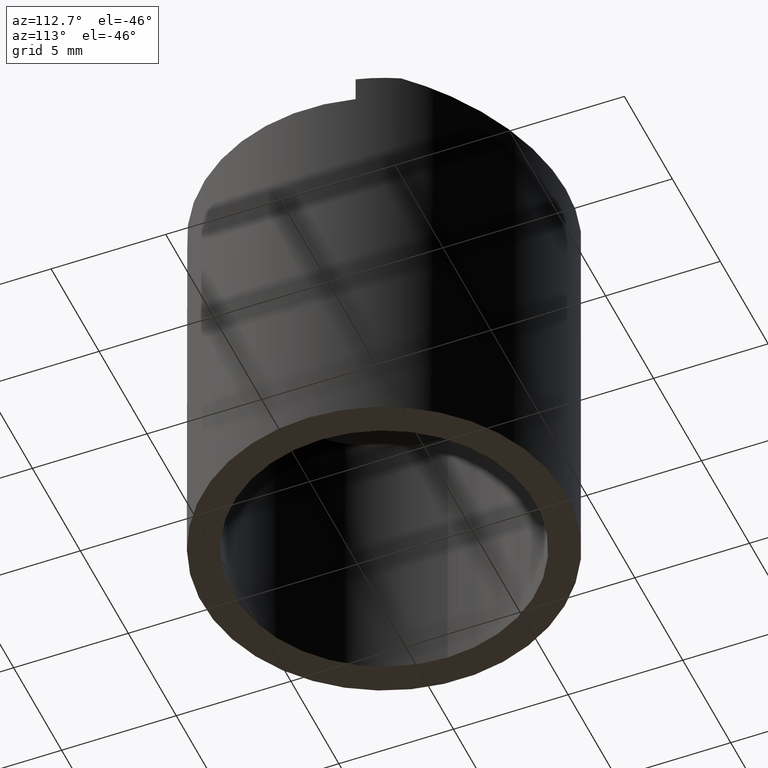
[diagram: clean part render]
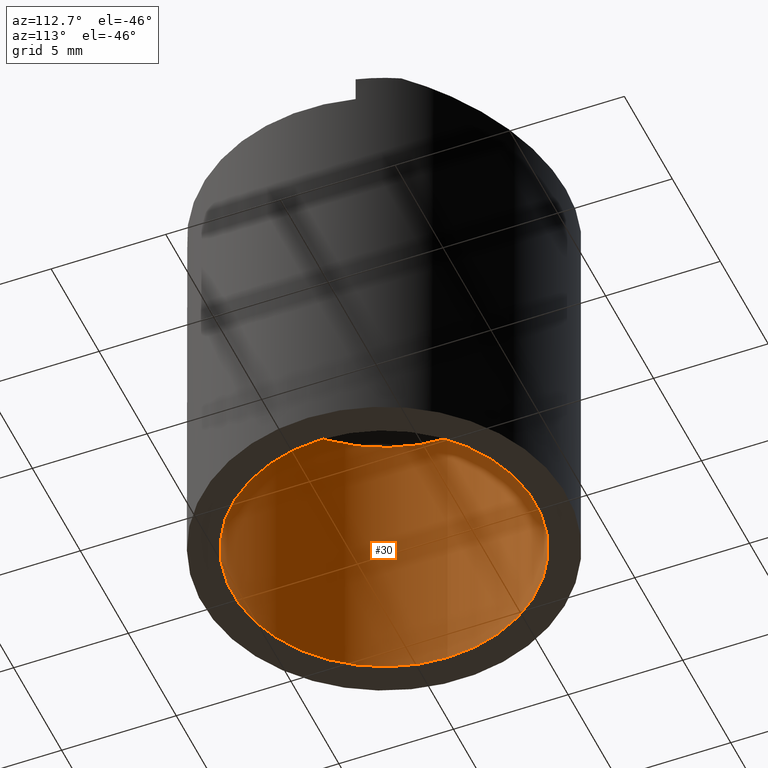
[diagram: same view with one face highlighted and labeled with its STEP entity id]
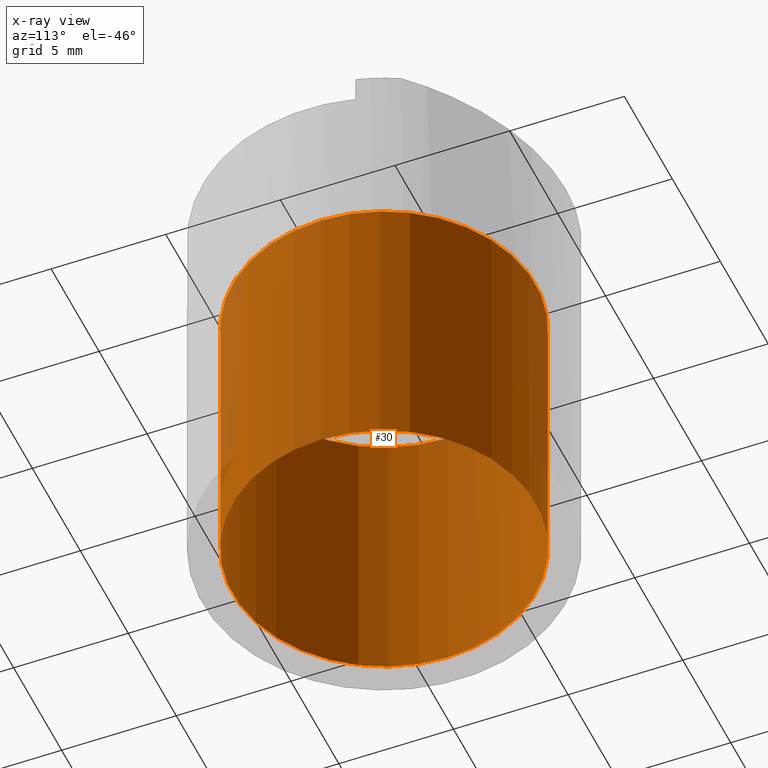
[diagram: x-ray of the same camera — body ghosted, the highlighted face saturated]
A machine part, auxiliary view. The second image highlights one B-rep face of the part: STEP entity #30.
The next image is the same camera in x-ray: the body ghosted, the highlighted face saturated — about 5% of this face is hidden behind the body in this view.
In plain terms, the highlighted cylindrical surface (bore or boss wall) has radius 6.604 mm, axis along (-0, 0, -1).
Its self-contained STEP definition (entity closure, byte-faithful):
#3 = EDGE_CURVE ( 'NONE', #283, #283, #216, .T. ) ;
#5 = EDGE_CURVE ( 'NONE', #282, #282, #287, .T. ) ;
#13 = DIRECTION ( 'NONE',  ( -1.000000000000000000, 0.0000000000000000000, 0.0000000000000000000 ) ) ;
#17 = DIRECTION ( 'NONE',  ( 0.0000000000000000000, 0.0000000000000000000, -1.000000000000000000 ) ) ;
#26 = CARTESIAN_POINT ( 'NONE',  ( 5.960459999999999900E-007, 0.04560001194499999800, 0.5000000000000000000 ) ) ;
#30 = ADVANCED_FACE ( 'NONE', ( #241, #254 ), #227, .F. ) ;
#67 = AXIS2_PLACEMENT_3D ( 'NONE', #98, #83, #85 ) ;
#68 = AXIS2_PLACEMENT_3D ( 'NONE', #26, #17, #13 ) ;
#80 = AXIS2_PLACEMENT_3D ( 'NONE', #164, #178, #198 ) ;
#83 = DIRECTION ( 'NONE',  ( 0.0000000000000000000, 0.0000000000000000000, -1.000000000000000000 ) ) ;
#85 = DIRECTION ( 'NONE',  ( -1.000000000000000000, 0.0000000000000000000, 0.0000000000000000000 ) ) ;
#98 = CARTESIAN_POINT ( 'NONE',  ( 5.960459999999999900E-007, 0.04560001194499999800, 0.0000000000000000000 ) ) ;
#104 = CARTESIAN_POINT ( 'NONE',  ( -0.2599994039540000100, 0.04560001194499999800, 0.0000000000000000000 ) ) ;
#109 = CARTESIAN_POINT ( 'NONE',  ( -0.2599994039540000100, 0.04560001194499999800, 0.5000000000000000000 ) ) ;
#164 = CARTESIAN_POINT ( 'NONE',  ( 5.960459999999999900E-007, 0.04560001194499999800, 0.5000000000000000000 ) ) ;
#178 = DIRECTION ( 'NONE',  ( -0.0000000000000000000, 0.0000000000000000000, -1.000000000000000000 ) ) ;
#198 = DIRECTION ( 'NONE',  ( -1.000000000000000000, 0.0000000000000000000, 0.0000000000000000000 ) ) ;
#216 = CIRCLE ( 'NONE', #68, 0.2600000000000000100 ) ;
#223 = ORIENTED_EDGE ( 'NONE', *, *, #5, .T. ) ;
#227 = CYLINDRICAL_SURFACE ( 'NONE', #80, 0.2600000000000000100 ) ;
#241 = FACE_OUTER_BOUND ( 'NONE', #245, .T. ) ;
#245 = EDGE_LOOP ( 'NONE', ( #271 ) ) ;
#249 = EDGE_LOOP ( 'NONE', ( #223 ) ) ;
#254 = FACE_OUTER_BOUND ( 'NONE', #249, .T. ) ;
#271 = ORIENTED_EDGE ( 'NONE', *, *, #3, .F. ) ;
#282 = VERTEX_POINT ( 'NONE', #104 ) ;
#283 = VERTEX_POINT ( 'NONE', #109 ) ;
#287 = CIRCLE ( 'NONE', #67, 0.2600000000000000100 ) ;